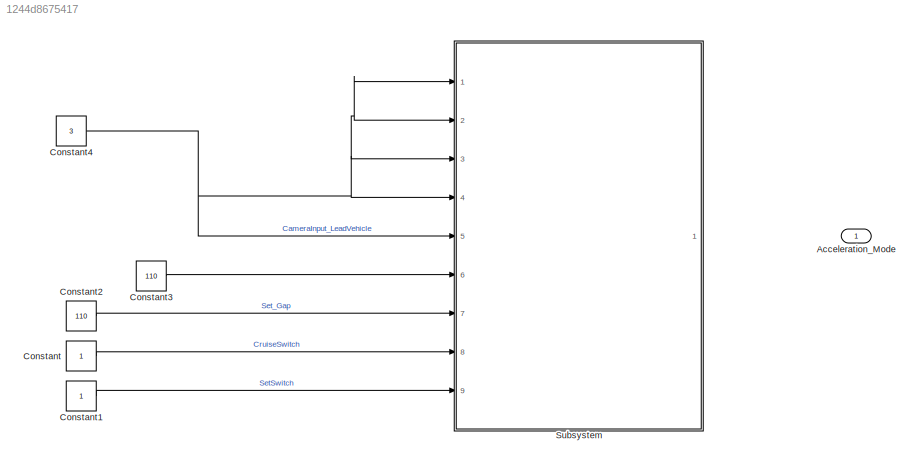
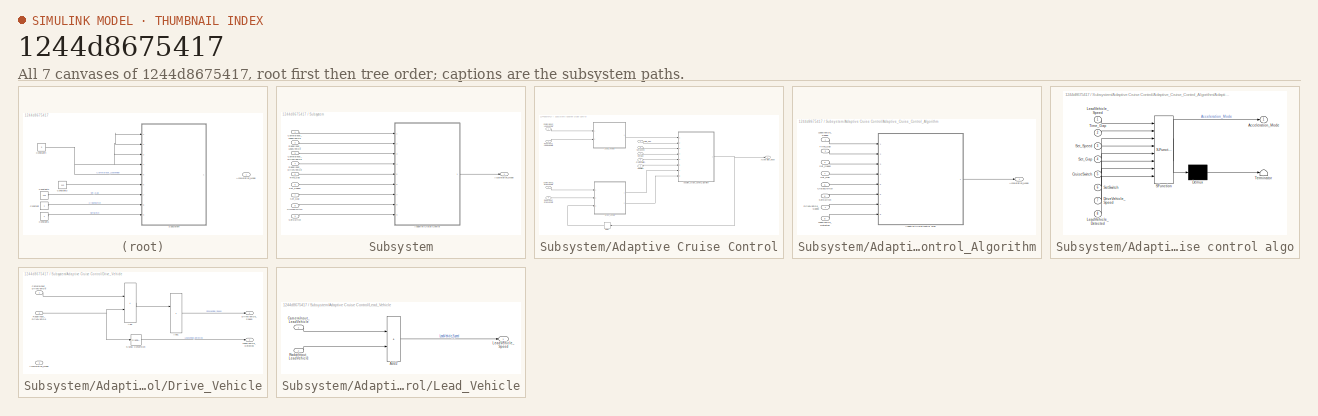
[diagram: thumbnail index - all 7 canvases of the model, root first then tree order]
MODEL slx_1244d8675417
KIND model
CONFIG AbsTol = auto
CONFIG EnableMultiTasking = on
CONFIG FixedStep = 0.01
CONFIG InitFcn = Acceleration_Mode = 0
CONFIG MaxStep = auto
CONFIG MinStep = auto
CONFIG RelTol = 1e-3
CONFIG SampleTimeConstraint = Unconstrained
CONFIG Solver = FixedStepDiscrete
CONFIG SolverName = FixedStepDiscrete
CONFIG StartTime = 0.0
CONFIG StopTime = 100
BLOCK [Outport] Acceleration_Mode
  OutDataTypeStr = uint8
  OutMax = 255
  OutMin = 0
BLOCK [Constant] Constant
  OutDataTypeStr = boolean
BLOCK [Constant] Constant1
  OutDataTypeStr = boolean
BLOCK [Constant] Constant2
  OutDataTypeStr = uint8
  Value = 110
BLOCK [Constant] Constant3
  OutDataTypeStr = uint8
  Value = 110
BLOCK [Constant] Constant4
  OutDataTypeStr = uint8
  Value = 3
BLOCK [SubSystem] Subsystem
  Ports = [9, 1]
  RequestExecContextInheritance = off
BLOCK [Outport] Subsystem/Acceleration_Mode
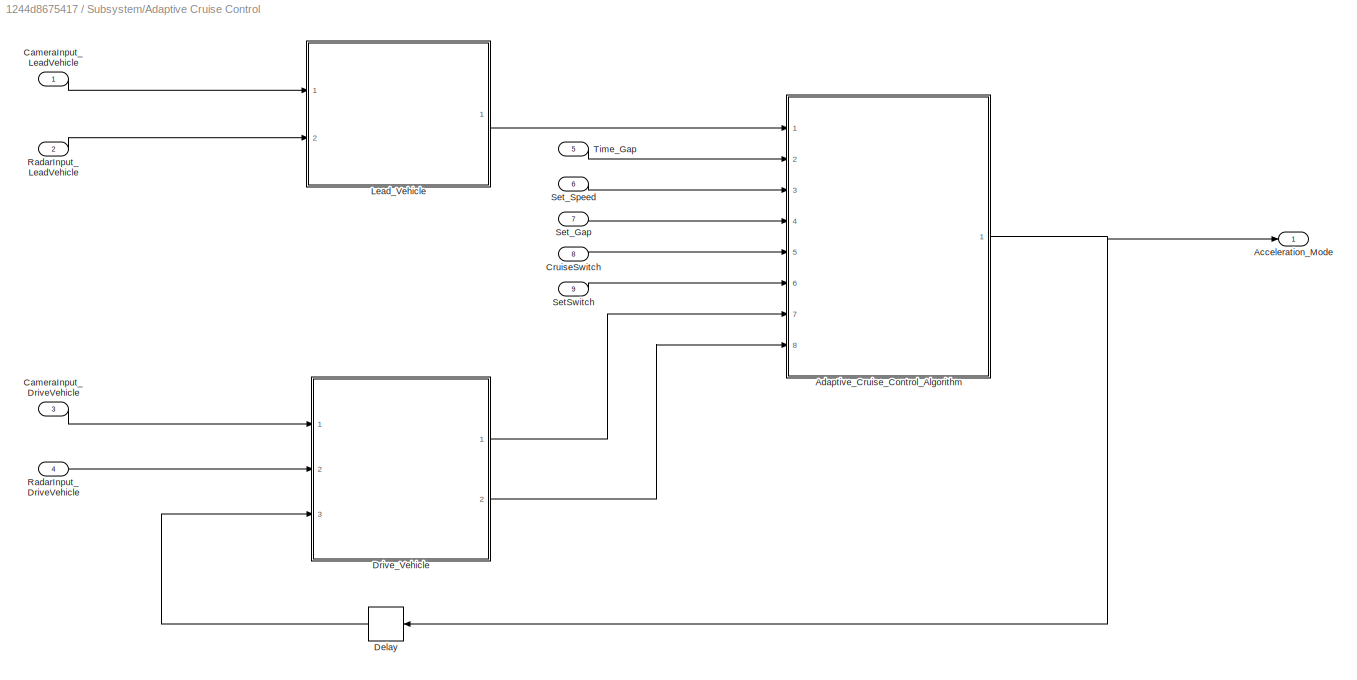
BLOCK [SubSystem] Subsystem/Adaptive Cruise Control
  Ports = [9, 1]
  RequestExecContextInheritance = off
BLOCK [Outport] Subsystem/Adaptive Cruise Control/Acceleration_Mode
  OutDataTypeStr = uint8
  OutMax = 255
  OutMin = 0
BLOCK [SubSystem] Subsystem/Adaptive Cruise Control/Adaptive_Cruise_Control_Algorithm
  Ports = [8, 1]
  RequestExecContextInheritance = off
BLOCK [Outport] Subsystem/Adaptive Cruise Control/Adaptive_Cruise_Control_Algorithm/Acceleration_Mode
  OutDataTypeStr = uint8
  OutMax = 255
  OutMin = 0
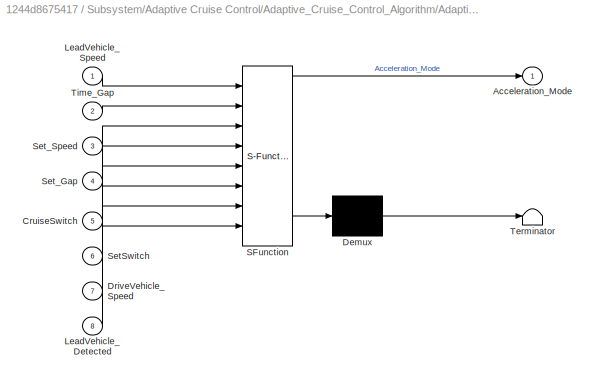
BLOCK [SubSystem] Subsystem/Adaptive Cruise Control/Adaptive_Cruise_Control_Algorithm/Adaptive Cruise control algo
  ErrorFcn = Stateflow.Translate.translate
  PermitHierarchicalResolution = ExplicitOnly
  Ports = [8, 1]
  RequestExecContextInheritance = off
  SFBlockType = Chart
  TreatAsAtomicUnit = on
BLOCK [Demux] Subsystem/Adaptive Cruise Control/Adaptive_Cruise_Control_Algorithm/Adaptive Cruise control algo/ Demux 
  Outputs = 1
  Ports = [1, 1]
BLOCK [S-Function] Subsystem/Adaptive Cruise Control/Adaptive_Cruise_Control_Algorithm/Adaptive Cruise control algo/ SFunction 
  EnableBusSupport = on
  FunctionName = sf_sfun
  PortCounts = [8 2]
  Ports = [8, 2]
  SFcnIsStateOwnerBlock = off
  SFunctionDeploymentMode = off
  Tag = Stateflow S-Function 3
BLOCK [Terminator] Subsystem/Adaptive Cruise Control/Adaptive_Cruise_Control_Algorithm/Adaptive Cruise control algo/ Terminator 
BLOCK [Outport] Subsystem/Adaptive Cruise Control/Adaptive_Cruise_Control_Algorithm/Adaptive Cruise control algo/Acceleration_Mode
BLOCK [Inport] Subsystem/Adaptive Cruise Control/Adaptive_Cruise_Control_Algorithm/Adaptive Cruise control algo/CruiseSwitch
  Port = 5
BLOCK [Inport] Subsystem/Adaptive Cruise Control/Adaptive_Cruise_Control_Algorithm/Adaptive Cruise control algo/DriveVehicle_Speed
  Port = 7
BLOCK [Inport] Subsystem/Adaptive Cruise Control/Adaptive_Cruise_Control_Algorithm/Adaptive Cruise control algo/LeadVehicle_Detected
  Port = 8
BLOCK [Inport] Subsystem/Adaptive Cruise Control/Adaptive_Cruise_Control_Algorithm/Adaptive Cruise control algo/LeadVehicle_Speed
BLOCK [Inport] Subsystem/Adaptive Cruise Control/Adaptive_Cruise_Control_Algorithm/Adaptive Cruise control algo/SetSwitch
  Port = 6
BLOCK [Inport] Subsystem/Adaptive Cruise Control/Adaptive_Cruise_Control_Algorithm/Adaptive Cruise control algo/Set_Gap
  Port = 4
BLOCK [Inport] Subsystem/Adaptive Cruise Control/Adaptive_Cruise_Control_Algorithm/Adaptive Cruise control algo/Set_Speed
  Port = 3
BLOCK [Inport] Subsystem/Adaptive Cruise Control/Adaptive_Cruise_Control_Algorithm/Adaptive Cruise control algo/Time_Gap
  Port = 2
BLOCK [Inport] Subsystem/Adaptive Cruise Control/Adaptive_Cruise_Control_Algorithm/CruiseSwitch
  Port = 5
BLOCK [Inport] Subsystem/Adaptive Cruise Control/Adaptive_Cruise_Control_Algorithm/DriveVehicle_Speed
  OutDataTypeStr = uint8
  OutMax = 255
  OutMin = 0
  Port = 7
BLOCK [Inport] Subsystem/Adaptive Cruise Control/Adaptive_Cruise_Control_Algorithm/LeadVehicle_Detected
  OutDataTypeStr = uint8
  OutMax = 255
  OutMin = 0
  Port = 8
BLOCK [Inport] Subsystem/Adaptive Cruise Control/Adaptive_Cruise_Control_Algorithm/LeadVehicle_Speed
  OutDataTypeStr = uint8
  OutMax = 255
  OutMin = 0
BLOCK [Inport] Subsystem/Adaptive Cruise Control/Adaptive_Cruise_Control_Algorithm/SetSwitch
  Port = 6
BLOCK [Inport] Subsystem/Adaptive Cruise Control/Adaptive_Cruise_Control_Algorithm/Set_Gap
  Port = 4
BLOCK [Inport] Subsystem/Adaptive Cruise Control/Adaptive_Cruise_Control_Algorithm/Set_Speed
  Port = 3
BLOCK [Inport] Subsystem/Adaptive Cruise Control/Adaptive_Cruise_Control_Algorithm/Time_Gap
  Port = 2
BLOCK [Inport] Subsystem/Adaptive Cruise Control/CameraInput_DriveVehicle
  OutDataTypeStr = uint8
  OutMax = 255
  OutMin = 0
  Port = 3
BLOCK [Inport] Subsystem/Adaptive Cruise Control/CameraInput_LeadVehicle 
  OutDataTypeStr = uint8
  OutMax = 255
  OutMin = 0
BLOCK [Inport] Subsystem/Adaptive Cruise Control/CruiseSwitch
  OutDataTypeStr = boolean
  OutMax = 1
  OutMin = 0
  Port = 8
BLOCK [Delay] Subsystem/Adaptive Cruise Control/Delay
  DelayLength = 1
  InitialCondition = 0
  InputPortMap = u0
  Ports = [1, 1]
BLOCK [SubSystem] Subsystem/Adaptive Cruise Control/Drive_Vehicle
  Ports = [3, 2]
  RequestExecContextInheritance = off
BLOCK [Inport] Subsystem/Adaptive Cruise Control/Drive_Vehicle/Acceleration_Mode
  Port = 3
BLOCK [Sum] Subsystem/Adaptive Cruise Control/Drive_Vehicle/Add
  IconShape = rectangular
  Ports = [2, 1]
BLOCK [Sum] Subsystem/Adaptive Cruise Control/Drive_Vehicle/Add1
  IconShape = rectangular
  Ports = [2, 1]
BLOCK [Inport] Subsystem/Adaptive Cruise Control/Drive_Vehicle/CameraInput_DriveVehicle
BLOCK [Outport] Subsystem/Adaptive Cruise Control/Drive_Vehicle/DriveVehicle_Speed
BLOCK [Outport] Subsystem/Adaptive Cruise Control/Drive_Vehicle/LeadVehicle_Detected
  Port = 2
BLOCK [Inport] Subsystem/Adaptive Cruise Control/Drive_Vehicle/RadarInput_DriveVehicle
  Port = 2
BLOCK [SignalConversion] Subsystem/Adaptive Cruise Control/Drive_Vehicle/Signal Conversion
  OverrideOpt = off
BLOCK [SubSystem] Subsystem/Adaptive Cruise Control/Lead_Vehicle
  Ports = [2, 1]
  RequestExecContextInheritance = off
BLOCK [Sum] Subsystem/Adaptive Cruise Control/Lead_Vehicle/Add2
  IconShape = rectangular
  Ports = [2, 1]
BLOCK [Inport] Subsystem/Adaptive Cruise Control/Lead_Vehicle/CameraInput_LeadVehicle
BLOCK [Outport] Subsystem/Adaptive Cruise Control/Lead_Vehicle/LeadVehicle_Speed
BLOCK [Inport] Subsystem/Adaptive Cruise Control/Lead_Vehicle/RadarInput_LeadVehicle
  Port = 2
BLOCK [Inport] Subsystem/Adaptive Cruise Control/RadarInput_DriveVehicle
  OutDataTypeStr = uint8
  OutMax = 255
  OutMin = 0
  Port = 4
BLOCK [Inport] Subsystem/Adaptive Cruise Control/RadarInput_LeadVehicle
  OutDataTypeStr = uint8
  OutMax = 255
  OutMin = 0
  Port = 2
BLOCK [Inport] Subsystem/Adaptive Cruise Control/SetSwitch
  OutDataTypeStr = boolean
  OutMax = 1
  OutMin = 0
  Port = 9
BLOCK [Inport] Subsystem/Adaptive Cruise Control/Set_Gap
  OutDataTypeStr = uint8
  OutMax = 255
  OutMin = 0
  Port = 7
BLOCK [Inport] Subsystem/Adaptive Cruise Control/Set_Speed
  OutDataTypeStr = uint8
  OutMax = 255
  OutMin = 0
  Port = 6
BLOCK [Inport] Subsystem/Adaptive Cruise Control/Time_Gap
  OutDataTypeStr = uint8
  OutMax = 255
  OutMin = 0
  Port = 5
BLOCK [Inport] Subsystem/CameraInput_DriveVehicle
  Port = 3
BLOCK [Inport] Subsystem/CameraInput_LeadVehicle 
BLOCK [Inport] Subsystem/CruiseSwitch
  Port = 8
BLOCK [Inport] Subsystem/RadarInput_DriveVehicle
  Port = 4
BLOCK [Inport] Subsystem/RadarInput_LeadVehicle
  Port = 2
BLOCK [Inport] Subsystem/SetSwitch
  Port = 9
BLOCK [Inport] Subsystem/Set_Gap
  Port = 7
BLOCK [Inport] Subsystem/Set_Speed
  Port = 6
BLOCK [Inport] Subsystem/Time_Gap
  Port = 5
LINE Constant1:1 -> Subsystem:9
LINE Constant2:1 -> Subsystem:7
LINE Constant3:1 -> Subsystem:6
NET Constant4:1 -> Subsystem:1, Subsystem:2, Subsystem:3, Subsystem:4, Subsystem:5
LINE Constant:1 -> Subsystem:8
LINE Subsystem/Adaptive Cruise Control/Adaptive_Cruise_Control_Algorithm/Adaptive Cruise control algo:1 -> Subsystem/Adaptive Cruise Control/Adaptive_Cruise_Control_Algorithm/Acceleration_Mode:1
LINE Subsystem/Adaptive Cruise Control/Adaptive_Cruise_Control_Algorithm/CruiseSwitch:1 -> Subsystem/Adaptive Cruise Control/Adaptive_Cruise_Control_Algorithm/Adaptive Cruise control algo:5
LINE Subsystem/Adaptive Cruise Control/Adaptive_Cruise_Control_Algorithm/DriveVehicle_Speed:1 -> Subsystem/Adaptive Cruise Control/Adaptive_Cruise_Control_Algorithm/Adaptive Cruise control algo:7
LINE Subsystem/Adaptive Cruise Control/Adaptive_Cruise_Control_Algorithm/LeadVehicle_Detected:1 -> Subsystem/Adaptive Cruise Control/Adaptive_Cruise_Control_Algorithm/Adaptive Cruise control algo:8
LINE Subsystem/Adaptive Cruise Control/Adaptive_Cruise_Control_Algorithm/LeadVehicle_Speed:1 -> Subsystem/Adaptive Cruise Control/Adaptive_Cruise_Control_Algorithm/Adaptive Cruise control algo:1
LINE Subsystem/Adaptive Cruise Control/Adaptive_Cruise_Control_Algorithm/SetSwitch:1 -> Subsystem/Adaptive Cruise Control/Adaptive_Cruise_Control_Algorithm/Adaptive Cruise control algo:6
LINE Subsystem/Adaptive Cruise Control/Adaptive_Cruise_Control_Algorithm/Set_Gap:1 -> Subsystem/Adaptive Cruise Control/Adaptive_Cruise_Control_Algorithm/Adaptive Cruise control algo:4
LINE Subsystem/Adaptive Cruise Control/Adaptive_Cruise_Control_Algorithm/Set_Speed:1 -> Subsystem/Adaptive Cruise Control/Adaptive_Cruise_Control_Algorithm/Adaptive Cruise control algo:3
LINE Subsystem/Adaptive Cruise Control/Adaptive_Cruise_Control_Algorithm/Time_Gap:1 -> Subsystem/Adaptive Cruise Control/Adaptive_Cruise_Control_Algorithm/Adaptive Cruise control algo:2
NET Subsystem/Adaptive Cruise Control/Adaptive_Cruise_Control_Algorithm:1 -> Subsystem/Adaptive Cruise Control/Acceleration_Mode:1, Subsystem/Adaptive Cruise Control/Delay:1
LINE Subsystem/Adaptive Cruise Control/CameraInput_DriveVehicle:1 -> Subsystem/Adaptive Cruise Control/Drive_Vehicle:1
LINE Subsystem/Adaptive Cruise Control/CameraInput_LeadVehicle :1 -> Subsystem/Adaptive Cruise Control/Lead_Vehicle:1
LINE Subsystem/Adaptive Cruise Control/CruiseSwitch:1 -> Subsystem/Adaptive Cruise Control/Adaptive_Cruise_Control_Algorithm:5
LINE Subsystem/Adaptive Cruise Control/Delay:1 -> Subsystem/Adaptive Cruise Control/Drive_Vehicle:3
LINE Subsystem/Adaptive Cruise Control/Drive_Vehicle/Add1:1 -> Subsystem/Adaptive Cruise Control/Drive_Vehicle/DriveVehicle_Speed:1
LINE Subsystem/Adaptive Cruise Control/Drive_Vehicle/Add:1 -> Subsystem/Adaptive Cruise Control/Drive_Vehicle/Add1:1
LINE Subsystem/Adaptive Cruise Control/Drive_Vehicle/CameraInput_DriveVehicle:1 -> Subsystem/Adaptive Cruise Control/Drive_Vehicle/Add:1
NET Subsystem/Adaptive Cruise Control/Drive_Vehicle/RadarInput_DriveVehicle:1 -> Subsystem/Adaptive Cruise Control/Drive_Vehicle/Add:2, Subsystem/Adaptive Cruise Control/Drive_Vehicle/Signal Conversion:1
LINE Subsystem/Adaptive Cruise Control/Drive_Vehicle/Signal Conversion:1 -> Subsystem/Adaptive Cruise Control/Drive_Vehicle/LeadVehicle_Detected:1
LINE Subsystem/Adaptive Cruise Control/Drive_Vehicle:1 -> Subsystem/Adaptive Cruise Control/Adaptive_Cruise_Control_Algorithm:7
LINE Subsystem/Adaptive Cruise Control/Drive_Vehicle:2 -> Subsystem/Adaptive Cruise Control/Adaptive_Cruise_Control_Algorithm:8
LINE Subsystem/Adaptive Cruise Control/Lead_Vehicle/Add2:1 -> Subsystem/Adaptive Cruise Control/Lead_Vehicle/LeadVehicle_Speed:1
LINE Subsystem/Adaptive Cruise Control/Lead_Vehicle/CameraInput_LeadVehicle:1 -> Subsystem/Adaptive Cruise Control/Lead_Vehicle/Add2:1
LINE Subsystem/Adaptive Cruise Control/Lead_Vehicle/RadarInput_LeadVehicle:1 -> Subsystem/Adaptive Cruise Control/Lead_Vehicle/Add2:2
LINE Subsystem/Adaptive Cruise Control/Lead_Vehicle:1 -> Subsystem/Adaptive Cruise Control/Adaptive_Cruise_Control_Algorithm:1
LINE Subsystem/Adaptive Cruise Control/RadarInput_DriveVehicle:1 -> Subsystem/Adaptive Cruise Control/Drive_Vehicle:2
LINE Subsystem/Adaptive Cruise Control/RadarInput_LeadVehicle:1 -> Subsystem/Adaptive Cruise Control/Lead_Vehicle:2
LINE Subsystem/Adaptive Cruise Control/SetSwitch:1 -> Subsystem/Adaptive Cruise Control/Adaptive_Cruise_Control_Algorithm:6
LINE Subsystem/Adaptive Cruise Control/Set_Gap:1 -> Subsystem/Adaptive Cruise Control/Adaptive_Cruise_Control_Algorithm:4
LINE Subsystem/Adaptive Cruise Control/Set_Speed:1 -> Subsystem/Adaptive Cruise Control/Adaptive_Cruise_Control_Algorithm:3
LINE Subsystem/Adaptive Cruise Control/Time_Gap:1 -> Subsystem/Adaptive Cruise Control/Adaptive_Cruise_Control_Algorithm:2
LINE Subsystem/Adaptive Cruise Control:1 -> Subsystem/Acceleration_Mode:1
LINE Subsystem/CameraInput_DriveVehicle:1 -> Subsystem/Adaptive Cruise Control:3
LINE Subsystem/CameraInput_LeadVehicle :1 -> Subsystem/Adaptive Cruise Control:1
LINE Subsystem/CruiseSwitch:1 -> Subsystem/Adaptive Cruise Control:8
LINE Subsystem/RadarInput_DriveVehicle:1 -> Subsystem/Adaptive Cruise Control:4
LINE Subsystem/RadarInput_LeadVehicle:1 -> Subsystem/Adaptive Cruise Control:2
LINE Subsystem/SetSwitch:1 -> Subsystem/Adaptive Cruise Control:9
LINE Subsystem/Set_Gap:1 -> Subsystem/Adaptive Cruise Control:7
LINE Subsystem/Set_Speed:1 -> Subsystem/Adaptive Cruise Control:6
LINE Subsystem/Time_Gap:1 -> Subsystem/Adaptive Cruise Control:5
note: NET lines group one-source signal fan-out (src -> all destinations, sorted); 1:1 wires keep LINE
CHART Subsystem/Adaptive Cruise Control/Adaptive_Cruise_Control_Algorithm/Adaptive Cruise control algo states=9 transitions=18
  STATE_LABEL 'ACC_STANDBY_MODE\nentry:\nAcceleration_Mode = uint8(1);'
  STATE_LABEL 'ACC_OFF_MODE\nentry:\nAcceleration_Mode = uint8(0);'
  STATE_LABEL 'ACC_ON_MODE'
  STATE_LABEL 'LeadVehicle_Not_Detected_Resume\nentry:\nAcceleration_Mode= uint8(1);'
  STATE_LABEL 'LeadVehicle_Detected_Resume\nentry:\nAcceleration_Mode= uint8(3);'
  STATE_LABEL 'LeadVehicle_Detected_Follow\nentry:\nAcceleration_Mode= uint8(2);'
  STATE_LABEL 'LeadVehicle_Not_Detected\nentry:\nAcceleration_Mode= uint8(1);'
  STATE_LABEL 'LeadVehicle_Speed_equal_Set_Speed\nentry:\nAcceleration_Mode= uint8(4);'
  STATE_LABEL 'LeadVehicle_Speed_lessthan_Set_Speed\nentry:\nAcceleration_Mode= uint8(5);'
  STATE_LABEL '[LeadVehicle_Detected ==0]'
  STATE_LABEL '[(DriveVehicle_Speed==Set_Speed) ...\n&& (LeadVehicle_Speed >= Set_Speed)...\n && (Time_Gap>=Set_Gap)]'
  STATE_LABEL '[(LeadVehicle_Detected==0) ...\n|| (DriveVehicle_Speed <= Set_Speed)]'
  STATE_LABEL '[(DriveVehicle_Speed< Set_Speed) ...\n&& (LeadVehicle_Speed > DriveVehicle_Speed)...\n|| (Time_Gap >= Set_Gap)]'
  STATE_LABEL '[(DriveVehicle_Speed< Set_Speed) ...\n&& (LeadVehicle_Speed > DriveVehicle_Speed)...\n&& (Time_Gap >= Set_Gap)]'
  STATE_LABEL '[LeadVehicle_Detected ==0]'
  STATE_LABEL '[(LeadVehicle_Detected==1) && ...\n(DriveVehicle_Speed == Set_Speed) && ...\n (LeadVehicle_Speed >= Set_Speed) &&...\n (Time_Gap>=Set_Gap)]'
  STATE_LABEL '[(LeadVehicle_Detected==1) ...\n&& (LeadVehicle_Speed < Set_Speed)...\n || (Time_Gap<Set_Gap)]'
  STATE_LABEL '[(LeadVehicle_Detected==0) && ...\n(DriveVehicle_Speed == Set_Speed)]'
  STATE_LABEL '[(LeadVehicle_Detected==1) ...\n&& (LeadVehicle_Speed < Set_Speed)...\n || (Time_Gap<Set_Gap)]'
  STATE_LABEL '[(LeadVehicle_Speed< Set_Speed) ...\n&& (LeadVehicle_Speed < DriveVehicle_Speed)...\n|| (Time_Gap == 0.75*Set_Gap)]'
  STATE_LABEL '[(LeadVehicle_Speed*1.25 >= DriveVehicle_Speed) ...\n&& (LeadVehicle_Speed*0.75 <= DriveVehicle_Speed)...\n&& (DriveVehicle_Speed < Set_Speed) && (Time_Gap <=1.25*Set_Gap)...\n&& (Time_Gap >= 0.75*Set_Gap)]'
  STATE_LABEL 'LeadVehicle_Not_Detected_Resume\nentry:\nAcceleration_Mode= uint8(1);'
  STATE_LABEL 'LeadVehicle_Detected_Resume\nentry:\nAcceleration_Mode= uint8(3);'
  STATE_LABEL 'LeadVehicle_Detected_Follow\nentry:\nAcceleration_Mode= uint8(2);'
  STATE_LABEL 'LeadVehicle_Not_Detected\nentry:\nAcceleration_Mode= uint8(1);'
  STATE_LABEL 'LeadVehicle_Speed_equal_Set_Speed\nentry:\nAcceleration_Mode= uint8(4);'
  STATE_LABEL 'LeadVehicle_Speed_lessthan_Set_Speed\nentry:\nAcceleration_Mode= uint8(5);'
CHART  states=0 transitions=0
